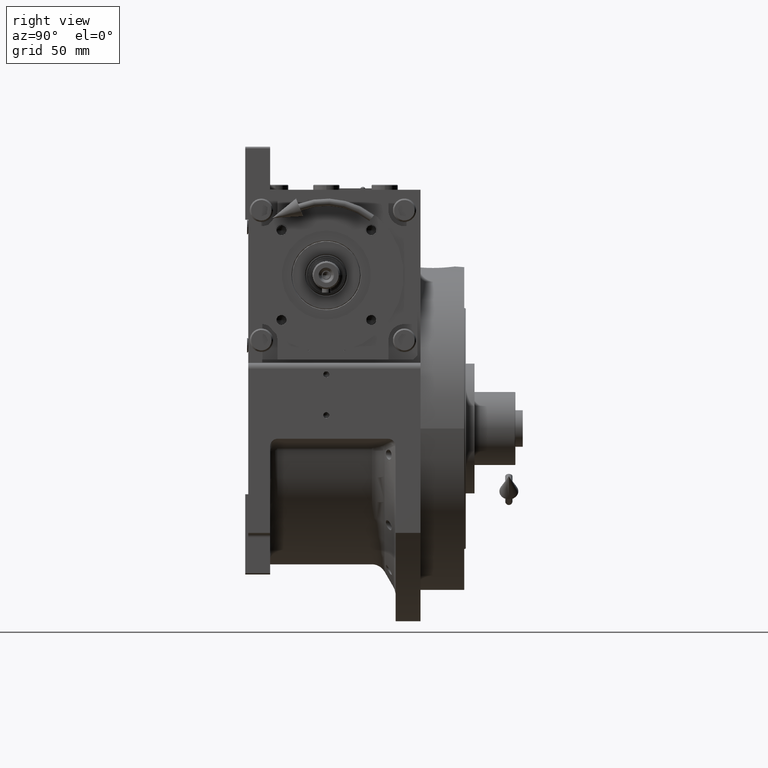
[diagram: clean part render]
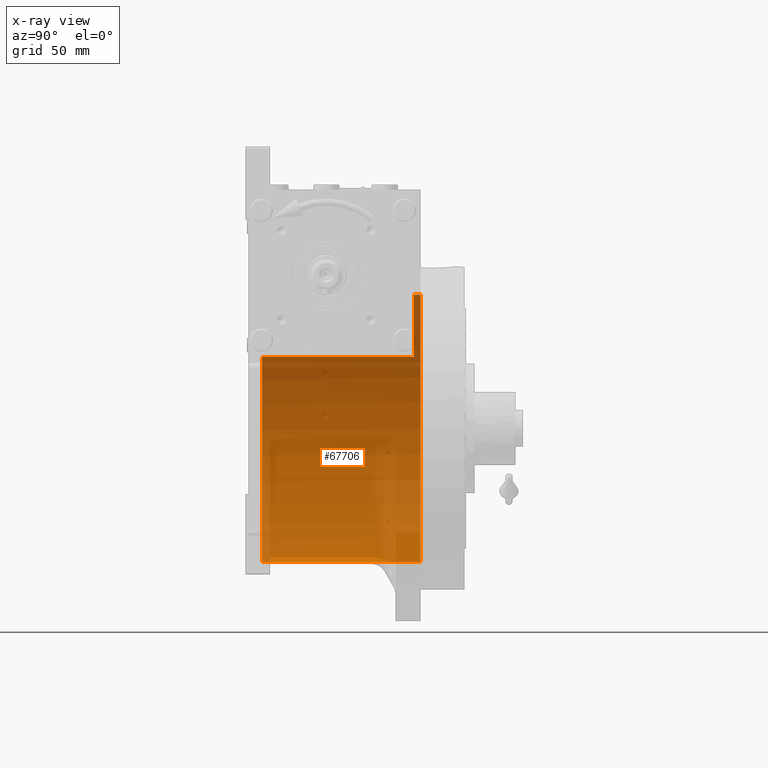
[diagram: x-ray — body ghosted, one internal face saturated and labeled with its STEP entity id]
A machine part, right view, then the same camera in x-ray: the body is ghosted and one INTERNAL B-rep face — a face not visible from any outside direction — is saturated and labeled: STEP entity #67706.
In plain terms, the highlighted cylindrical surface (partial cylindrical patch) has radius 91.5 mm, axis along (0, -1, 0).
Its self-contained STEP definition (entity closure, byte-faithful):
#1027 = EDGE_CURVE ( 'NONE', #47593, #33229, #58219, .T. ) ;
#3820 = DIRECTION ( 'NONE',  ( 0.000000000000000000, -1.000000000000000000, 0.000000000000000000 ) ) ;
#5557 = EDGE_CURVE ( 'NONE', #47474, #37469, #20332, .T. ) ;
#5924 = AXIS2_PLACEMENT_3D ( 'NONE', #68348, #63680, #41856 ) ;
#7985 = DIRECTION ( 'NONE',  ( -0.000000000000000000, 1.000000000000000000, -0.000000000000000000 ) ) ;
#9854 = CARTESIAN_POINT ( 'NONE',  ( 1.120551821219827868E-14, 60.00000000000000000, 91.50000000000000000 ) ) ;
#10728 = CARTESIAN_POINT ( 'NONE',  ( -77.27386362800814368, 60.00000000000000000, 48.99999999999998579 ) ) ;
#12542 = VECTOR ( 'NONE', #7985, 1000.000000000000000 ) ;
#16100 = CARTESIAN_POINT ( 'NONE',  ( 0.000000000000000000, 64.50000000000000000, -91.50000000000000000 ) ) ;
#16472 = EDGE_CURVE ( 'NONE', #47593, #47474, #56322, .T. ) ;
#16711 = FACE_OUTER_BOUND ( 'NONE', #62313, .T. ) ;
#17188 = VERTEX_POINT ( 'NONE', #44930 ) ;
#17725 = ORIENTED_EDGE ( 'NONE', *, *, #1027, .T. ) ;
#19918 = CARTESIAN_POINT ( 'NONE',  ( 1.120551821219827868E-14, 69.00000000000004263, 91.50000000000000000 ) ) ;
#19956 = AXIS2_PLACEMENT_3D ( 'NONE', #52130, #63193, #40308 ) ;
#20140 = LINE ( 'NONE', #31222, #12542 ) ;
#20332 = LINE ( 'NONE', #64336, #55026 ) ;
#21137 = DIRECTION ( 'NONE',  ( 1.776356839400250465E-15, 0.000000000000000000, -1.000000000000000000 ) ) ;
#31222 = CARTESIAN_POINT ( 'NONE',  ( -77.27386362800812947, 69.00000000000004263, 48.99999999999998579 ) ) ;
#31737 = CARTESIAN_POINT ( 'NONE',  ( 0.000000000000000000, -44.00000000000000000, -91.50000000000000000 ) ) ;
#32137 = DIRECTION ( 'NONE',  ( 0.000000000000000000, 0.000000000000000000, 1.000000000000000000 ) ) ;
#33229 = VERTEX_POINT ( 'NONE', #9854 ) ;
#37469 = VERTEX_POINT ( 'NONE', #31737 ) ;
#37654 = EDGE_CURVE ( 'NONE', #17188, #61127, #20140, .T. ) ;
#39189 = ORIENTED_EDGE ( 'NONE', *, *, #5557, .F. ) ;
#39626 = ORIENTED_EDGE ( 'NONE', *, *, #37654, .F. ) ;
#40102 = CIRCLE ( 'NONE', #62944, 91.50000000000000000 ) ;
#40308 = DIRECTION ( 'NONE',  ( 0.000000000000000000, 0.000000000000000000, -1.000000000000000000 ) ) ;
#41856 = DIRECTION ( 'NONE',  ( 0.000000000000000000, 0.000000000000000000, 1.000000000000000000 ) ) ;
#44729 = CARTESIAN_POINT ( 'NONE',  ( 1.120551821219827868E-14, 64.50000000000000000, 91.50000000000000000 ) ) ;
#44930 = CARTESIAN_POINT ( 'NONE',  ( -77.27386362800814368, -44.00000000000000000, 49.00000000000000000 ) ) ;
#47474 = VERTEX_POINT ( 'NONE', #16100 ) ;
#47538 = ORIENTED_EDGE ( 'NONE', *, *, #16472, .F. ) ;
#47593 = VERTEX_POINT ( 'NONE', #44729 ) ;
#47879 = AXIS2_PLACEMENT_3D ( 'NONE', #70170, #69821, #21137 ) ;
#52130 = CARTESIAN_POINT ( 'NONE',  ( 0.000000000000000000, 69.00000000000004263, 0.000000000000000000 ) ) ;
#52553 = EDGE_CURVE ( 'NONE', #61127, #33229, #59278, .T. ) ;
#53408 = ORIENTED_EDGE ( 'NONE', *, *, #52553, .F. ) ;
#55026 = VECTOR ( 'NONE', #58987, 1000.000000000000000 ) ;
#55365 = DIRECTION ( 'NONE',  ( 0.000000000000000000, 1.000000000000000000, 0.000000000000000000 ) ) ;
#56322 = CIRCLE ( 'NONE', #5924, 91.50000000000000000 ) ;
#56595 = VECTOR ( 'NONE', #3820, 1000.000000000000000 ) ;
#56687 = EDGE_CURVE ( 'NONE', #37469, #17188, #40102, .T. ) ;
#58219 = LINE ( 'NONE', #19918, #56595 ) ;
#58987 = DIRECTION ( 'NONE',  ( 0.000000000000000000, -1.000000000000000000, 0.000000000000000000 ) ) ;
#59278 = CIRCLE ( 'NONE', #47879, 91.50000000000000000 ) ;
#61127 = VERTEX_POINT ( 'NONE', #10728 ) ;
#61688 = ORIENTED_EDGE ( 'NONE', *, *, #56687, .F. ) ;
#62313 = EDGE_LOOP ( 'NONE', ( #47538, #17725, #53408, #39626, #61688, #39189 ) ) ;
#62944 = AXIS2_PLACEMENT_3D ( 'NONE', #64719, #55365, #32137 ) ;
#63193 = DIRECTION ( 'NONE',  ( 0.000000000000000000, -1.000000000000000000, 0.000000000000000000 ) ) ;
#63680 = DIRECTION ( 'NONE',  ( -0.000000000000000000, -1.000000000000000000, -0.000000000000000000 ) ) ;
#64336 = CARTESIAN_POINT ( 'NONE',  ( 0.000000000000000000, 69.00000000000004263, -91.50000000000000000 ) ) ;
#64719 = CARTESIAN_POINT ( 'NONE',  ( 0.000000000000000000, -44.00000000000000000, 0.000000000000000000 ) ) ;
#66457 = CYLINDRICAL_SURFACE ( 'NONE', #19956, 91.50000000000000000 ) ;
#67706 = ADVANCED_FACE ( 'NONE', ( #16711 ), #66457, .F. ) ;
#68348 = CARTESIAN_POINT ( 'NONE',  ( 0.000000000000000000, 64.50000000000000000, 0.000000000000000000 ) ) ;
#69821 = DIRECTION ( 'NONE',  ( 0.000000000000000000, 1.000000000000000000, 0.000000000000000000 ) ) ;
#70170 = CARTESIAN_POINT ( 'NONE',  ( 0.000000000000000000, 60.00000000000000000, 0.000000000000000000 ) ) ;